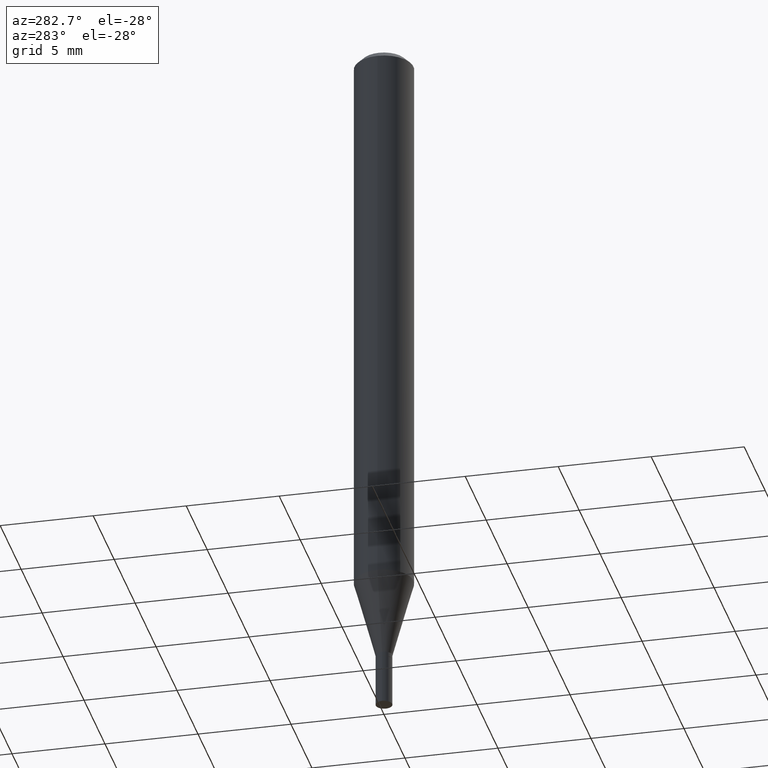
[diagram: clean part render]
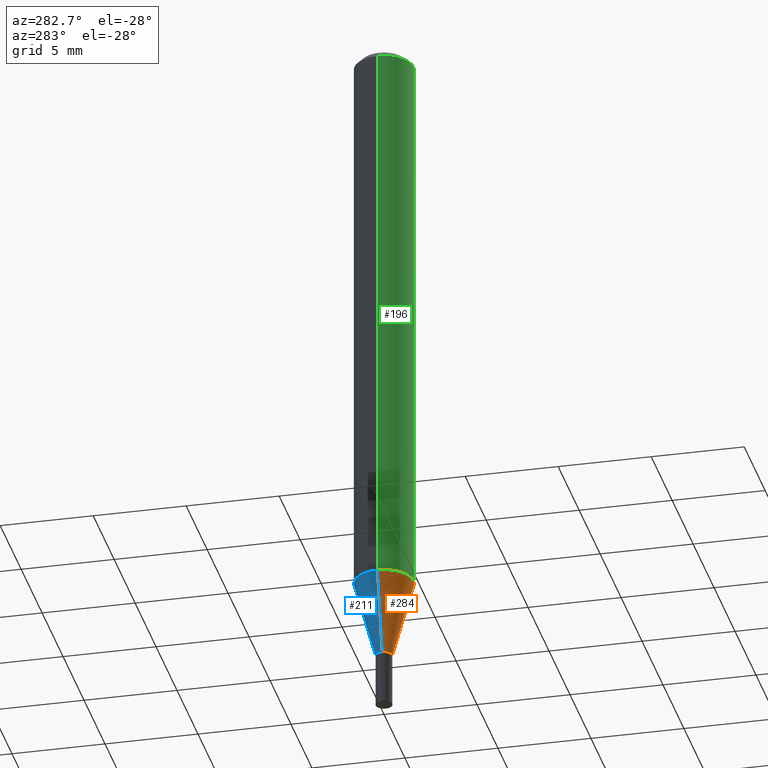
[diagram: same view with three faces highlighted in distinct colors, each labeled with its STEP entity id]
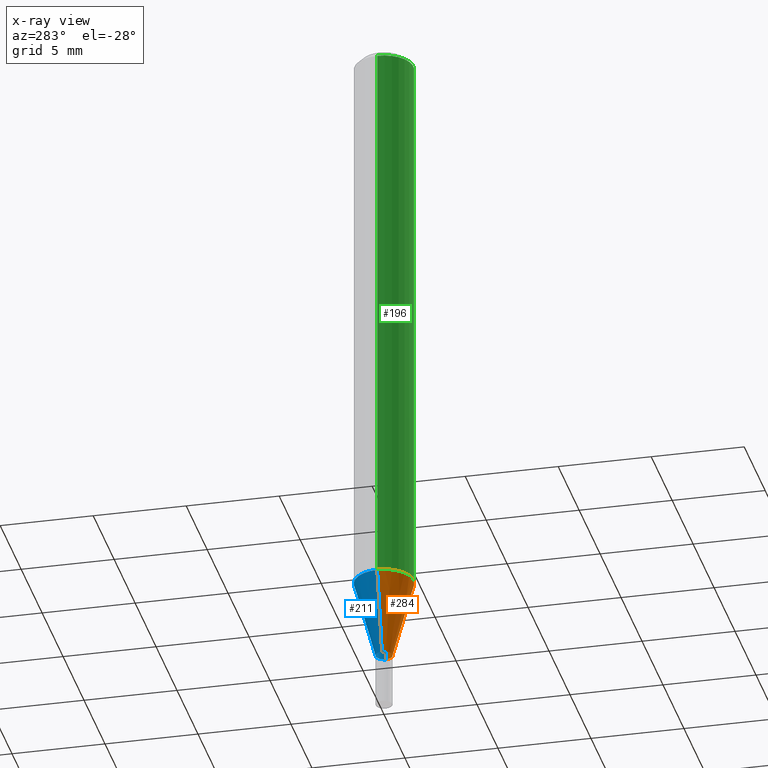
[diagram: x-ray of the same camera — body ghosted, the three highlighted faces saturated]
A machine part, auxiliary view with three faces highlighted in distinct colors.
The next image is the same camera in x-ray (body ghosted, the three faces saturated) — at least one of them is partly hidden behind the body in this view.
Their STEP definitions:

[orange] entity #284 — the highlighted conical surface has half-angle 15 deg.
#1 = CARTESIAN_POINT ( 'NONE',  ( 0.01749999999999992534, -4.957903501157266562E-15, -1.385000000000000009 ) ) ;
#3 = DIRECTION ( 'NONE',  ( 1.000000000000000000, -6.982962677686279332E-15, 0.000000000000000000 ) ) ;
#25 = ORIENTED_EDGE ( 'NONE', *, *, #308, .F. ) ;
#26 = AXIS2_PLACEMENT_3D ( 'NONE', #163, #300, #452 ) ;
#29 = VERTEX_POINT ( 'NONE', #153 ) ;
#33 = DIRECTION ( 'NONE',  ( 0.2588190451025216277, 1.565188264969619995E-15, 0.9659258262890679791 ) ) ;
#34 = VERTEX_POINT ( 'NONE', #1 ) ;
#40 = CARTESIAN_POINT ( 'NONE',  ( 3.386974296566414366E-29, -4.835701654297756579E-15, -1.385000000000000009 ) ) ;
#76 = VECTOR ( 'NONE', #192, 39.37007874015748143 ) ;
#81 = EDGE_CURVE ( 'NONE', #34, #261, #354, .T. ) ;
#105 = CARTESIAN_POINT ( 'NONE',  ( 0.01749999999999992534, -4.957903501157266562E-15, -1.385000000000000009 ) ) ;
#111 = EDGE_CURVE ( 'NONE', #427, #261, #250, .T. ) ;
#113 = DIRECTION ( 'NONE',  ( 1.000000000000000000, -6.982962677686270655E-15, 0.000000000000000000 ) ) ;
#136 = EDGE_CURVE ( 'NONE', #29, #34, #294, .T. ) ;
#152 = ORIENTED_EDGE ( 'NONE', *, *, #136, .T. ) ;
#153 = CARTESIAN_POINT ( 'NONE',  ( -0.01749999999999992534, -4.258300880613290081E-15, -1.385000000000000009 ) ) ;
#155 = CARTESIAN_POINT ( 'NONE',  ( -0.01749999999999992534, -4.711356675539740119E-15, -1.385000000000000009 ) ) ;
#163 = CARTESIAN_POINT ( 'NONE',  ( 3.386974296566414366E-29, -4.835701654297756579E-15, -1.385000000000000009 ) ) ;
#164 = AXIS2_PLACEMENT_3D ( 'NONE', #40, #182, #3 ) ;
#182 = DIRECTION ( 'NONE',  ( -2.445468806185136597E-29, 3.491481338843145583E-15, 1.000000000000000000 ) ) ;
#187 = VECTOR ( 'NONE', #33, 39.37007874015748143 ) ;
#192 = DIRECTION ( 'NONE',  ( -0.2588190451025216277, 5.211531920934551831E-15, 0.9659258262890679791 ) ) ;
#207 = AXIS2_PLACEMENT_3D ( 'NONE', #253, #314, #113 ) ;
#235 = CONICAL_SURFACE ( 'NONE', #26, 0.01749999999999992534, 0.2617993877991502960 ) ;
#247 = EDGE_LOOP ( 'NONE', ( #25, #152, #249, #310 ) ) ;
#249 = ORIENTED_EDGE ( 'NONE', *, *, #81, .T. ) ;
#250 = CIRCLE ( 'NONE', #207, 0.06250000000000000000 ) ;
#253 = CARTESIAN_POINT ( 'NONE',  ( 2.976276674081067124E-29, -4.249334295536902658E-15, -1.217057713659400964 ) ) ;
#261 = VERTEX_POINT ( 'NONE', #333 ) ;
#284 = ADVANCED_FACE ( 'NONE', ( #373 ), #235, .T. ) ;
#294 = CIRCLE ( 'NONE', #164, 0.01749999999999992534 ) ;
#300 = DIRECTION ( 'NONE',  ( -2.445468806185136597E-29, 3.491481338843145583E-15, 1.000000000000000000 ) ) ;
#308 = EDGE_CURVE ( 'NONE', #29, #427, #413, .T. ) ;
#310 = ORIENTED_EDGE ( 'NONE', *, *, #111, .F. ) ;
#314 = DIRECTION ( 'NONE',  ( -2.445468806185136597E-29, 3.491481338843145583E-15, 1.000000000000000000 ) ) ;
#333 = CARTESIAN_POINT ( 'NONE',  ( 0.06249999999999999306, -4.685769462892295117E-15, -1.217057713659400964 ) ) ;
#354 = LINE ( 'NONE', #105, #187 ) ;
#373 = FACE_OUTER_BOUND ( 'NONE', #247, .T. ) ;
#413 = LINE ( 'NONE', #155, #76 ) ;
#418 = CARTESIAN_POINT ( 'NONE',  ( -0.06249999999999999306, -3.805245085686840042E-15, -1.217057713659400964 ) ) ;
#427 = VERTEX_POINT ( 'NONE', #418 ) ;
#452 = DIRECTION ( 'NONE',  ( 1.000000000000000000, -6.982962677686279332E-15, 0.000000000000000000 ) ) ;

[blue] entity #211 — the highlighted conical surface has half-angle 15 deg.
#1 = CARTESIAN_POINT ( 'NONE',  ( 0.01749999999999992534, -4.957903501157266562E-15, -1.385000000000000009 ) ) ;
#5 = CARTESIAN_POINT ( 'NONE',  ( 3.386974296566414366E-29, -4.835701654297756579E-15, -1.385000000000000009 ) ) ;
#15 = AXIS2_PLACEMENT_3D ( 'NONE', #86, #268, #162 ) ;
#19 = CARTESIAN_POINT ( 'NONE',  ( 2.976276674081067124E-29, -4.249334295536902658E-15, -1.217057713659400964 ) ) ;
#29 = VERTEX_POINT ( 'NONE', #153 ) ;
#33 = DIRECTION ( 'NONE',  ( 0.2588190451025216277, 1.565188264969619995E-15, 0.9659258262890679791 ) ) ;
#34 = VERTEX_POINT ( 'NONE', #1 ) ;
#59 = AXIS2_PLACEMENT_3D ( 'NONE', #5, #321, #222 ) ;
#70 = ORIENTED_EDGE ( 'NONE', *, *, #308, .T. ) ;
#76 = VECTOR ( 'NONE', #192, 39.37007874015748143 ) ;
#81 = EDGE_CURVE ( 'NONE', #34, #261, #354, .T. ) ;
#86 = CARTESIAN_POINT ( 'NONE',  ( 3.386974296566414366E-29, -4.835701654297756579E-15, -1.385000000000000009 ) ) ;
#89 = AXIS2_PLACEMENT_3D ( 'NONE', #19, #190, #120 ) ;
#105 = CARTESIAN_POINT ( 'NONE',  ( 0.01749999999999992534, -4.957903501157266562E-15, -1.385000000000000009 ) ) ;
#114 = ORIENTED_EDGE ( 'NONE', *, *, #81, .F. ) ;
#120 = DIRECTION ( 'NONE',  ( 1.000000000000000000, -6.982962677686270655E-15, 0.000000000000000000 ) ) ;
#121 = CONICAL_SURFACE ( 'NONE', #15, 0.01749999999999992534, 0.2617993877991502960 ) ;
#141 = CIRCLE ( 'NONE', #89, 0.06250000000000000000 ) ;
#153 = CARTESIAN_POINT ( 'NONE',  ( -0.01749999999999992534, -4.258300880613290081E-15, -1.385000000000000009 ) ) ;
#155 = CARTESIAN_POINT ( 'NONE',  ( -0.01749999999999992534, -4.711356675539740119E-15, -1.385000000000000009 ) ) ;
#159 = EDGE_CURVE ( 'NONE', #34, #29, #263, .T. ) ;
#162 = DIRECTION ( 'NONE',  ( 1.000000000000000000, -6.982962677686279332E-15, 0.000000000000000000 ) ) ;
#187 = VECTOR ( 'NONE', #33, 39.37007874015748143 ) ;
#190 = DIRECTION ( 'NONE',  ( -2.445468806185136597E-29, 3.491481338843145583E-15, 1.000000000000000000 ) ) ;
#192 = DIRECTION ( 'NONE',  ( -0.2588190451025216277, 5.211531920934551831E-15, 0.9659258262890679791 ) ) ;
#195 = FACE_OUTER_BOUND ( 'NONE', #428, .T. ) ;
#211 = ADVANCED_FACE ( 'NONE', ( #195 ), #121, .T. ) ;
#222 = DIRECTION ( 'NONE',  ( 1.000000000000000000, -6.982962677686279332E-15, 0.000000000000000000 ) ) ;
#261 = VERTEX_POINT ( 'NONE', #333 ) ;
#263 = CIRCLE ( 'NONE', #59, 0.01749999999999992534 ) ;
#268 = DIRECTION ( 'NONE',  ( -2.445468806185136597E-29, 3.491481338843145583E-15, 1.000000000000000000 ) ) ;
#277 = EDGE_CURVE ( 'NONE', #261, #427, #141, .T. ) ;
#308 = EDGE_CURVE ( 'NONE', #29, #427, #413, .T. ) ;
#321 = DIRECTION ( 'NONE',  ( -2.445468806185136597E-29, 3.491481338843145583E-15, 1.000000000000000000 ) ) ;
#333 = CARTESIAN_POINT ( 'NONE',  ( 0.06249999999999999306, -4.685769462892295117E-15, -1.217057713659400964 ) ) ;
#344 = ORIENTED_EDGE ( 'NONE', *, *, #277, .F. ) ;
#354 = LINE ( 'NONE', #105, #187 ) ;
#413 = LINE ( 'NONE', #155, #76 ) ;
#418 = CARTESIAN_POINT ( 'NONE',  ( -0.06249999999999999306, -3.805245085686840042E-15, -1.217057713659400964 ) ) ;
#427 = VERTEX_POINT ( 'NONE', #418 ) ;
#428 = EDGE_LOOP ( 'NONE', ( #441, #70, #344, #114 ) ) ;
#441 = ORIENTED_EDGE ( 'NONE', *, *, #159, .T. ) ;

[green] entity #196 — the highlighted cylindrical surface (edge-blend (fillet) strip) has radius 1.5875 mm, axis along (-0, 0, 1).
#17 = CARTESIAN_POINT ( 'NONE',  ( 0.06250000000000000000, -4.888073874380388472E-16, -0.01499999999999999944 ) ) ;
#38 = DIRECTION ( 'NONE',  ( -2.445468806185136597E-29, 3.491481338843145583E-15, 1.000000000000000000 ) ) ;
#46 = FACE_OUTER_BOUND ( 'NONE', #82, .T. ) ;
#47 = VECTOR ( 'NONE', #61, 39.37007874015748143 ) ;
#61 = DIRECTION ( 'NONE',  ( -2.445468806185136877E-29, 3.491481338843145188E-15, 1.000000000000000000 ) ) ;
#67 = CARTESIAN_POINT ( 'NONE',  ( -0.06250000000000000000, 4.440892098500626162E-16, -3.074334431409316114E-30 ) ) ;
#82 = EDGE_LOOP ( 'NONE', ( #311, #191, #391, #274 ) ) ;
#88 = AXIS2_PLACEMENT_3D ( 'NONE', #434, #38, #143 ) ;
#91 = EDGE_CURVE ( 'NONE', #455, #201, #233, .T. ) ;
#94 = VECTOR ( 'NONE', #440, 39.37007874015748143 ) ;
#109 = AXIS2_PLACEMENT_3D ( 'NONE', #265, #293, #231 ) ;
#111 = EDGE_CURVE ( 'NONE', #427, #261, #250, .T. ) ;
#113 = DIRECTION ( 'NONE',  ( 1.000000000000000000, -6.982962677686270655E-15, 0.000000000000000000 ) ) ;
#143 = DIRECTION ( 'NONE',  ( 1.000000000000000000, -6.982962677686266711E-15, 0.000000000000000000 ) ) ;
#151 = LINE ( 'NONE', #442, #94 ) ;
#160 = CYLINDRICAL_SURFACE ( 'NONE', #109, 0.06250000000000000000 ) ;
#168 = EDGE_CURVE ( 'NONE', #261, #201, #151, .T. ) ;
#172 = CARTESIAN_POINT ( 'NONE',  ( -0.06250000000000000000, -1.706764047959712450E-15, -0.01499999999999999944 ) ) ;
#191 = ORIENTED_EDGE ( 'NONE', *, *, #111, .T. ) ;
#196 = ADVANCED_FACE ( 'NONE', ( #46 ), #160, .T. ) ;
#201 = VERTEX_POINT ( 'NONE', #17 ) ;
#207 = AXIS2_PLACEMENT_3D ( 'NONE', #253, #314, #113 ) ;
#231 = DIRECTION ( 'NONE',  ( 1.000000000000000000, -6.982962677686266711E-15, 4.876176775795935793E-29 ) ) ;
#233 = CIRCLE ( 'NONE', #88, 0.06250000000000000000 ) ;
#250 = CIRCLE ( 'NONE', #207, 0.06250000000000000000 ) ;
#253 = CARTESIAN_POINT ( 'NONE',  ( 2.976276674081067124E-29, -4.249334295536902658E-15, -1.217057713659400964 ) ) ;
#261 = VERTEX_POINT ( 'NONE', #333 ) ;
#265 = CARTESIAN_POINT ( 'NONE',  ( 0.000000000000000000, 0.000000000000000000, 0.000000000000000000 ) ) ;
#274 = ORIENTED_EDGE ( 'NONE', *, *, #91, .F. ) ;
#293 = DIRECTION ( 'NONE',  ( -2.445468806185136597E-29, 3.491481338843145583E-15, 1.000000000000000000 ) ) ;
#311 = ORIENTED_EDGE ( 'NONE', *, *, #424, .F. ) ;
#314 = DIRECTION ( 'NONE',  ( -2.445468806185136597E-29, 3.491481338843145583E-15, 1.000000000000000000 ) ) ;
#333 = CARTESIAN_POINT ( 'NONE',  ( 0.06249999999999999306, -4.685769462892295117E-15, -1.217057713659400964 ) ) ;
#391 = ORIENTED_EDGE ( 'NONE', *, *, #168, .T. ) ;
#418 = CARTESIAN_POINT ( 'NONE',  ( -0.06249999999999999306, -3.805245085686840042E-15, -1.217057713659400964 ) ) ;
#424 = EDGE_CURVE ( 'NONE', #427, #455, #462, .T. ) ;
#427 = VERTEX_POINT ( 'NONE', #418 ) ;
#434 = CARTESIAN_POINT ( 'NONE',  ( 3.668203209277705088E-31, -5.237222008264718399E-17, -0.01499999999999999944 ) ) ;
#440 = DIRECTION ( 'NONE',  ( -2.445468806185136877E-29, 3.491481338843145188E-15, 1.000000000000000000 ) ) ;
#442 = CARTESIAN_POINT ( 'NONE',  ( 0.06250000000000000000, -4.364351673553916694E-16, 3.047610484872459871E-30 ) ) ;
#455 = VERTEX_POINT ( 'NONE', #172 ) ;
#462 = LINE ( 'NONE', #67, #47 ) ;